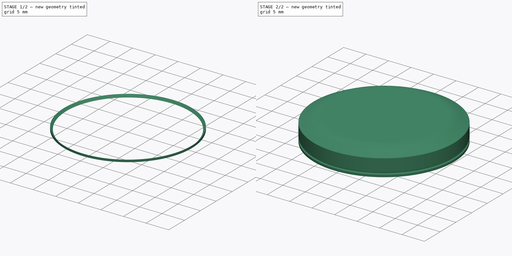
[diagram: build sequence overview — one tinted view per stage of 2, left to right]
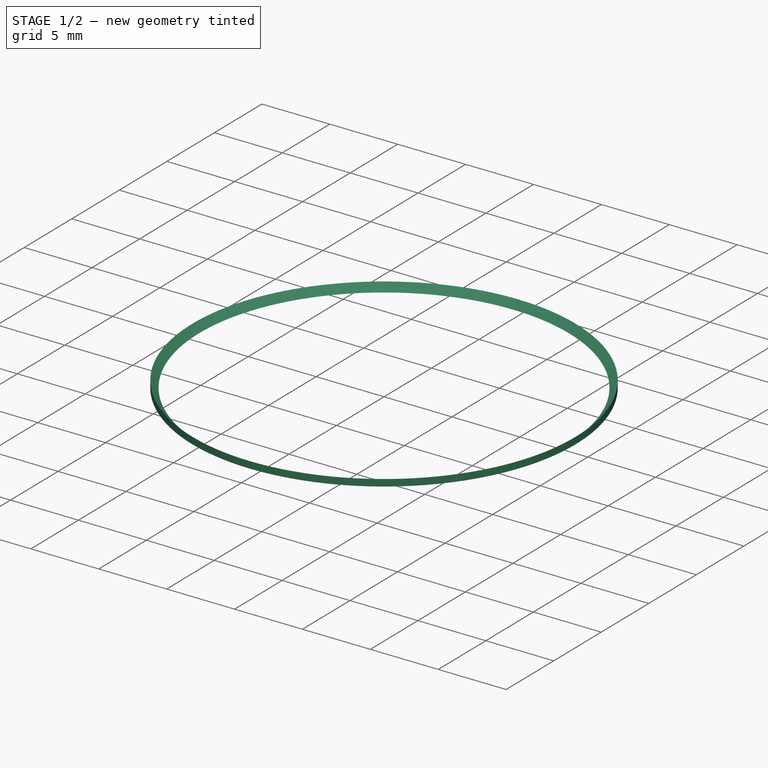
[diagram: stage 1 of 2 — iso view after this stage's code; geometry added in this stage tinted green]
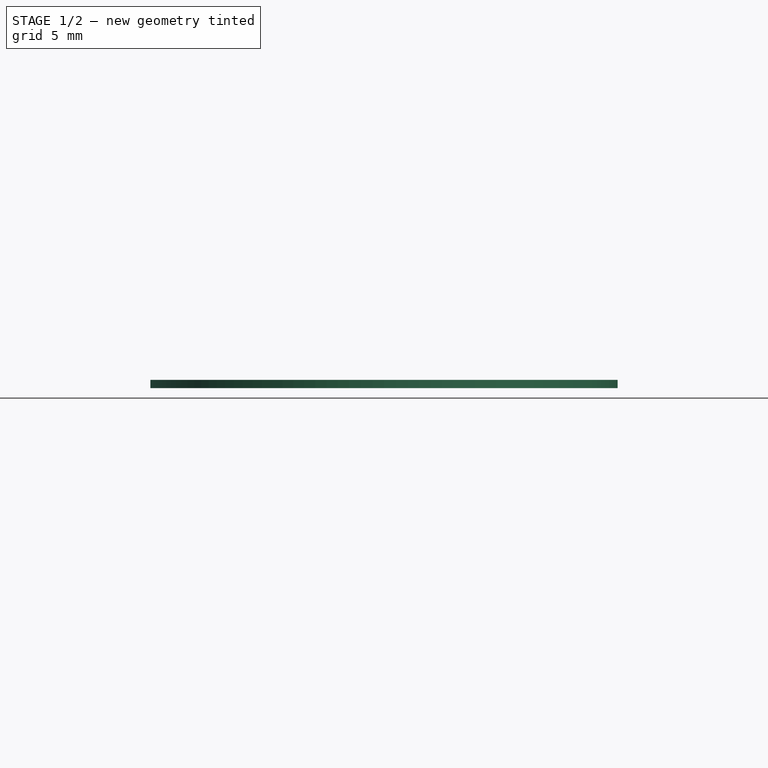
[diagram: stage 1 of 2 — front view after this stage's code; geometry added in this stage tinted green]
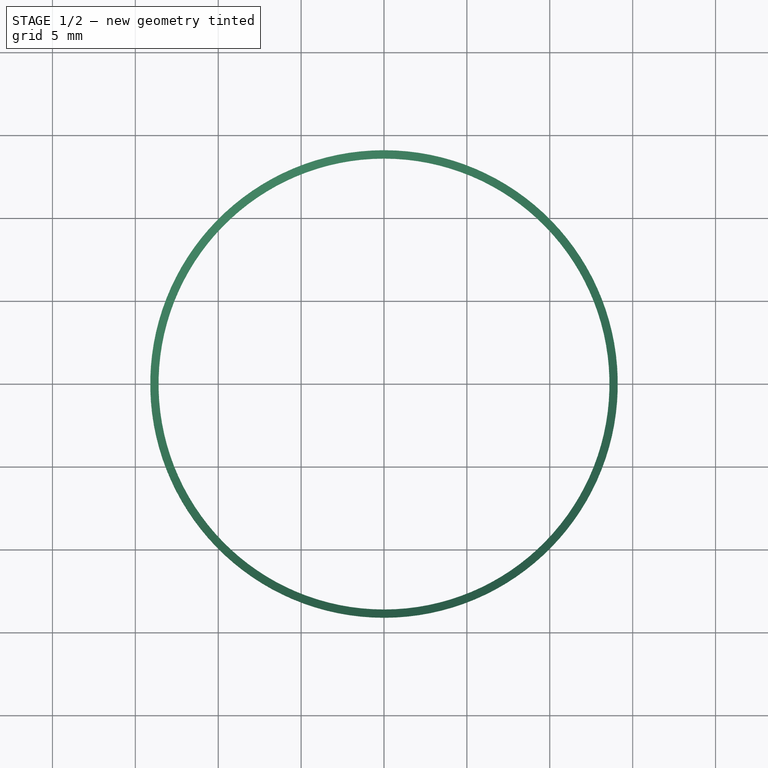
[diagram: stage 1 of 2 — top view after this stage's code; geometry added in this stage tinted green]
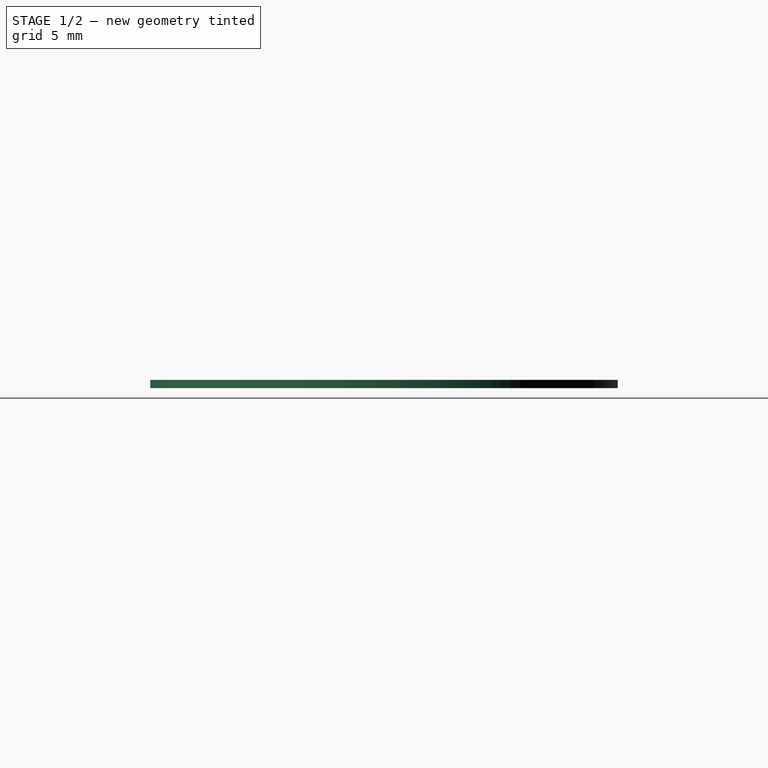
[diagram: stage 1 of 2 — right view after this stage's code; geometry added in this stage tinted green]
FCSTD DOCUMENT  (FreeCAD 0.19R20415 (Git))
Label: Vostok_Amphibia_Crystal
License: All rights reserved
LicenseURL: http://en.wikipedia.org/wiki/All_rights_reserved
objects: Sketcher::SketchObject×2, PartDesign::Revolution×2, PartDesign::Body×2
note: 8 computed .brp shape members not serialized (recipe doc carries the construction recipe); baked Part::Feature solids carry a one-line shape summary decoded from their .brp

FEATURE [PartDesign::Body] Body001  label="Crystal"
  Group = -> [Sketch002,Revolution001]
  Origin = -> Origin001
  Tip = -> Revolution001
FEATURE [Sketcher::SketchObject] Sketch
  MapMode = 5
  Placement = pos=(0,0,0) rot=(0.57735,0.57735,0.57735;2.0944rad)
  Support = -> [YZ_Plane]
  sketch-geometry (3):
    g0: LineSegment StartX=13.6 StartY=0 StartZ=0 EndX=14.1 EndY=0 EndZ=0
    g1: LineSegment StartX=14.1 StartY=0 StartZ=0 EndX=14.1 EndY=0.5 EndZ=0
    g2: LineSegment StartX=14.1 StartY=0.5 StartZ=0 EndX=13.6 EndY=0 EndZ=0
  constraints (9):
    c: PointOnObject(g0,g-1)
    c: PointOnObject(g0,g-1)
    c: Coincident(g0,g1)
    c: Coincident(g1,g2)
    c: Coincident(g2,g0)
    c: DistanceX(g0) = 14.1
    c: DistanceX(g0,g0) = 0.5
    c: Vertical(g1)
    c: Equal(g1,g0)
FEATURE [PartDesign::Revolution] Revolution
  Angle = 360
  Axis = (-3e-16,3e-16,1)
  Base = (0,0,0)
  Placement = pos=(0,0,0) rot=(0.57735,0.57735,0.57735;2.0944rad)
  Profile = -> Sketch
  ReferenceAxis = -> Z_Axis
  Reversed = true
FEATURE [PartDesign::Body] Body  label="TensionRing"
  Group = -> [Sketch,Revolution]
  Origin = -> Origin
  Tip = -> Revolution
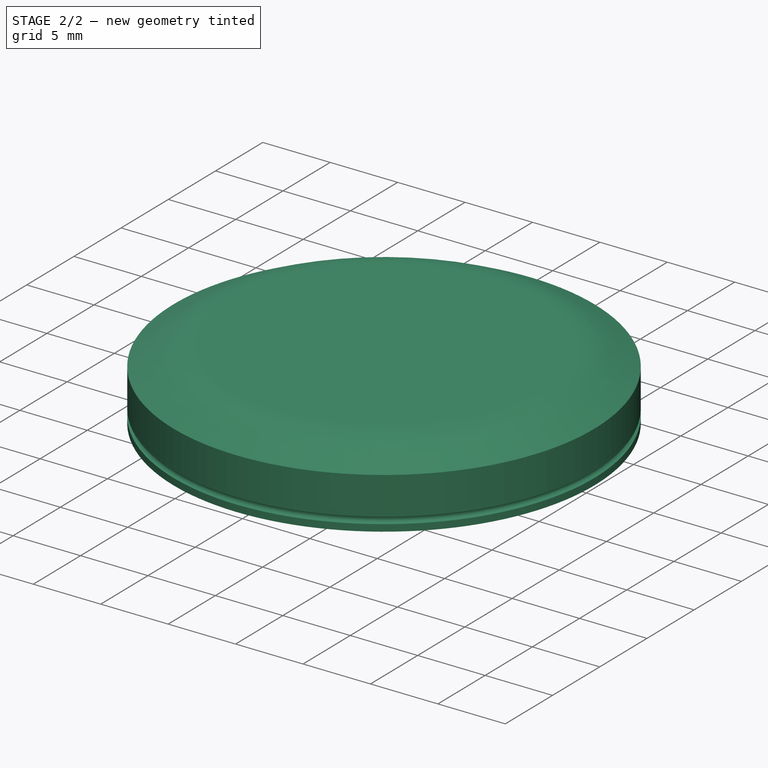
[diagram: stage 2 of 2 — iso view after this stage's code; geometry added in this stage tinted green]
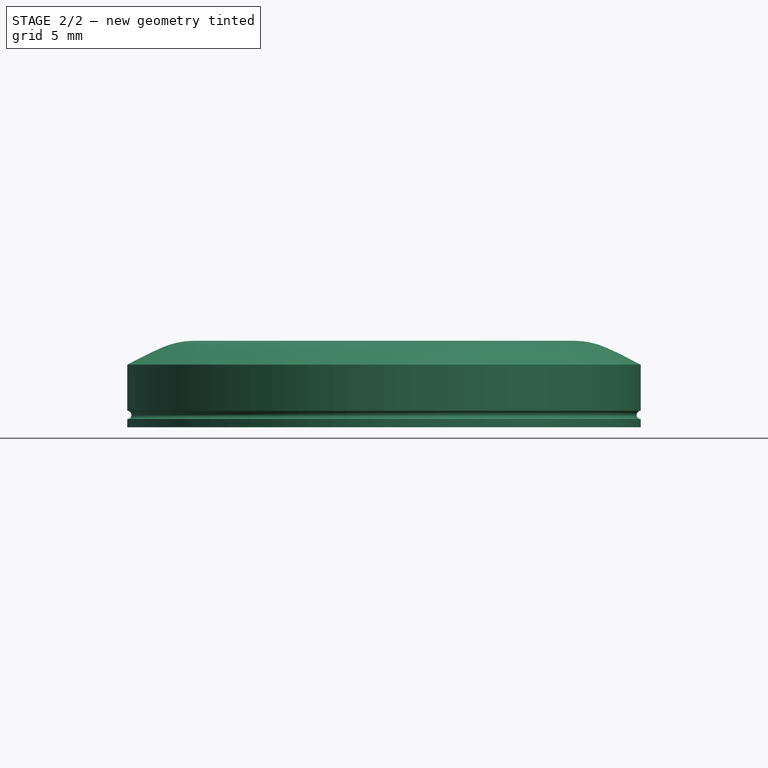
[diagram: stage 2 of 2 — front view after this stage's code; geometry added in this stage tinted green]
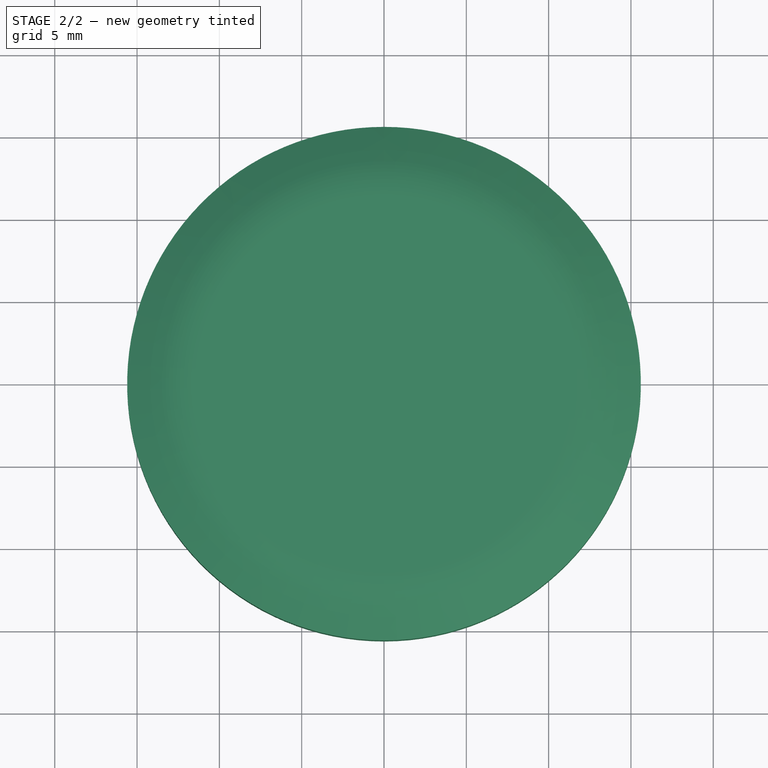
[diagram: stage 2 of 2 — top view after this stage's code; geometry added in this stage tinted green]
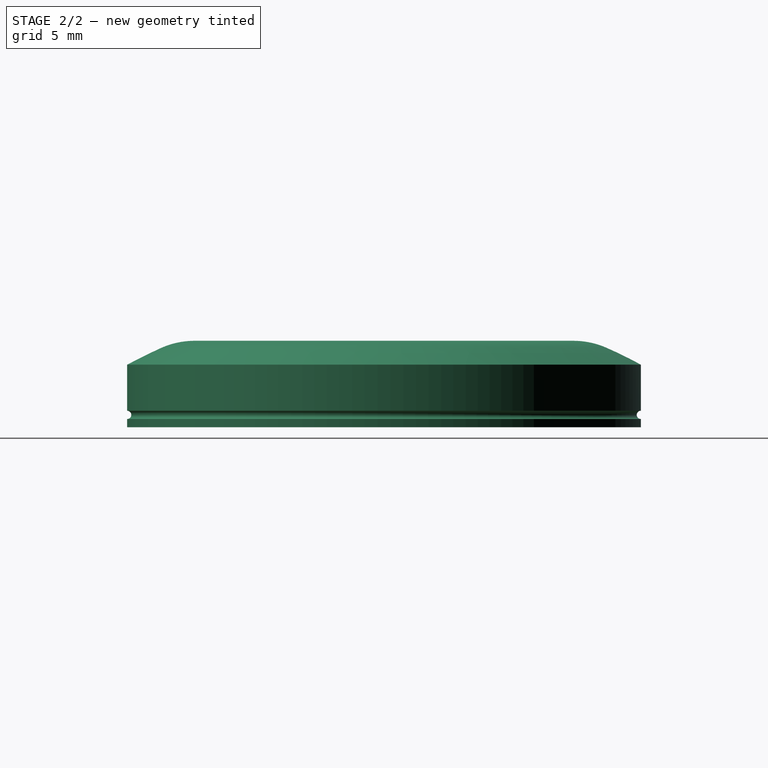
[diagram: stage 2 of 2 — right view after this stage's code; geometry added in this stage tinted green]
FEATURE [Sketcher::SketchObject] Sketch002
  MapMode = 5
  Placement = pos=(0,0,0) rot=(0.57735,0.57735,0.57735;2.0944rad)
  Support = -> [YZ_Plane001]
  sketch-geometry (11):
    g0: LineSegment StartX=14.1 StartY=2 StartZ=0 EndX=14.1 EndY=0 EndZ=0
    g1: LineSegment StartX=14.1 StartY=0 StartZ=0 EndX=15.6 EndY=0 EndZ=0
    g2: ArcOfCircle CenterX=3.53086 CenterY=-18.0937 CenterZ=0 NormalX=0 NormalY=0 NormalZ=1 AngleXU=0 Radius=25 StartAngle=1.06699 EndAngle=1.16096
    g3: LineSegment StartX=0 StartY=5.25 StartZ=0 EndX=11.5 EndY=5.25 EndZ=0
    g4: ArcOfCircle CenterX=11.5 CenterY=0.25 CenterZ=0 NormalX=0 NormalY=0 NormalZ=1 AngleXU=0 Radius=5 StartAngle=1.16096 EndAngle=1.5708
    g5: LineSegment StartX=0 StartY=2.25 StartZ=0 EndX=13.85 EndY=2.25 EndZ=0
    g6: ArcOfCircle CenterX=13.85 CenterY=2 CenterZ=0 NormalX=0 NormalY=0 NormalZ=1 AngleXU=0 Radius=0.25 StartAngle=0 EndAngle=1.5708
    g7: LineSegment StartX=0 StartY=5.25 StartZ=0 EndX=0 EndY=2.25 EndZ=0
    g8: LineSegment StartX=15.6 StartY=0 StartZ=0 EndX=15.6 EndY=0.5 EndZ=0
    g9: LineSegment StartX=15.6 StartY=1 StartZ=0 EndX=15.6 EndY=3.8 EndZ=0
    g10: ArcOfCircle CenterX=15.6 CenterY=0.75 CenterZ=0 NormalX=0 NormalY=0 NormalZ=1 AngleXU=0 Radius=0.25 StartAngle=1.5708 EndAngle=4.71239
  constraints (33):
    c: Coincident(g0,g1)
    c: Vertical(g0)
    c: Horizontal(g3)
    c: Tangent(g3,g4) = 1.5708
    c: Tangent(g2,g4) = -1.5708
    c: Tangent(g5,g6) = 1.5708
    c: Tangent(g0,g6) = 1.5708
    c: DistanceY(g3) = 5.25
    c: DistanceY(g5,g3) = 3
    c: Radius(g6) = 0.25
    c: DistanceX(g1,g1) = 1.5
    c: Vertical(g7)
    c: Coincident(g3,g7)
    c: Coincident(g5,g7)
    c: DistanceX(g1) = 15.6
    c: DistanceY(g2) = 3.8
    c: Radius(g2) = 25
    c: Radius(g4) = 5
    c: PointOnObject(g5,g-2)
    c: PointOnObject(g1,g-1)
    c: Horizontal(g1)
    c: Horizontal(g5)
    c: DistanceX(g3,g3) = 11.5
    c: Coincident(g1,g8)
    c: Vertical(g8)
    c: Coincident(g9,g2)
    c: Vertical(g9)
    c: Coincident(g10,g9)
    c: Coincident(g10,g8)
    c: Vertical(g8,g9)
    c: Vertical(g9,g10)
    c: Radius(g10) = 0.25
    c: DistanceY(g8,g8) = 0.5
FEATURE [PartDesign::Revolution] Revolution001
  AllowMultiFace = false
  Angle = 360
  Axis = (-2e-16,3e-16,1)
  Base = (0,0,0)
  Placement = pos=(0,0,0) rot=(0.57735,0.57735,0.57735;2.0944rad)
  Profile = -> Sketch002
  ReferenceAxis = -> Sketch002 [V_Axis]
  Reversed = true
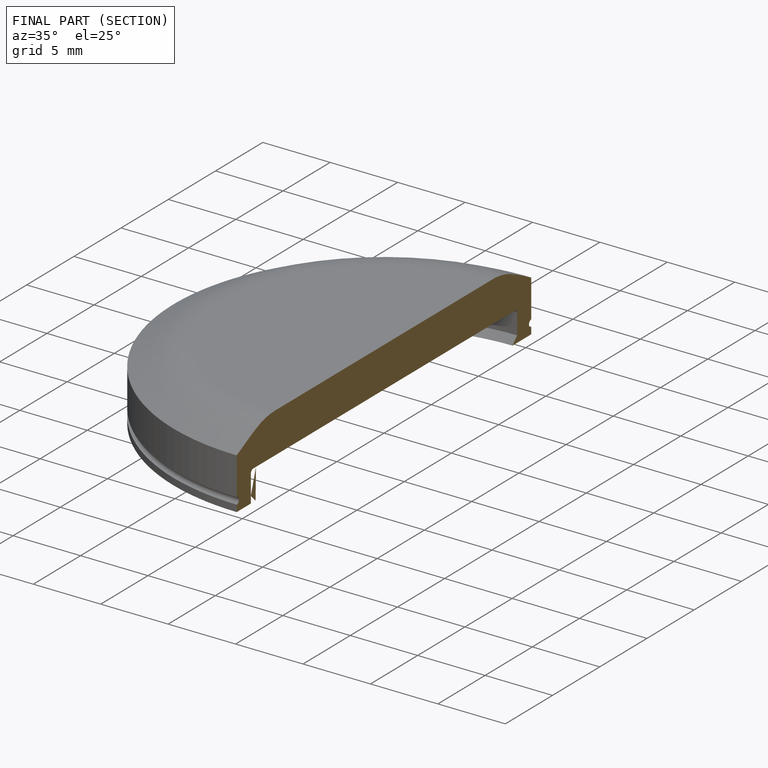
[diagram: finished part — half-section view (interior)]
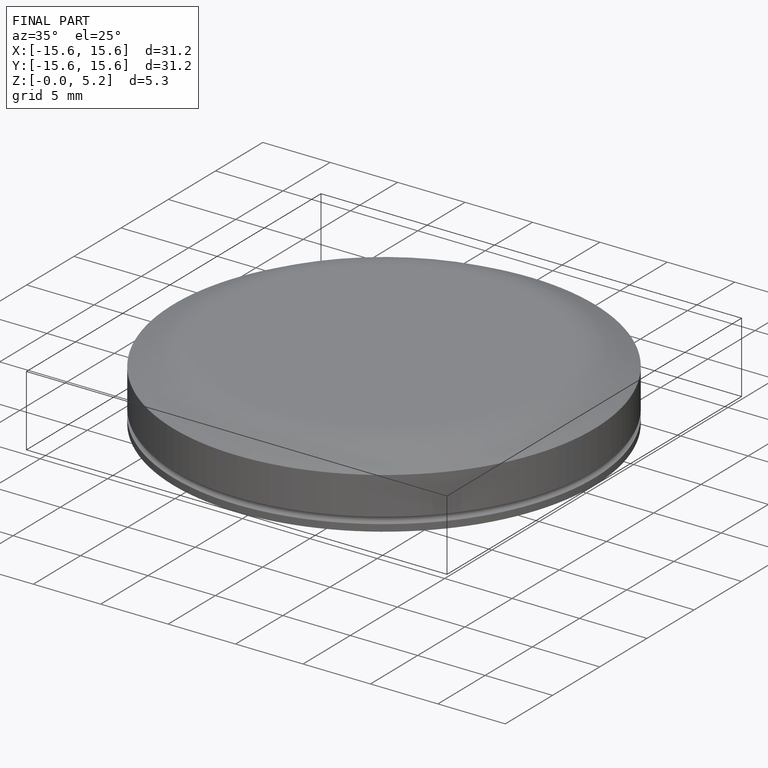
[diagram: finished part — iso view with bounding-box wireframe]
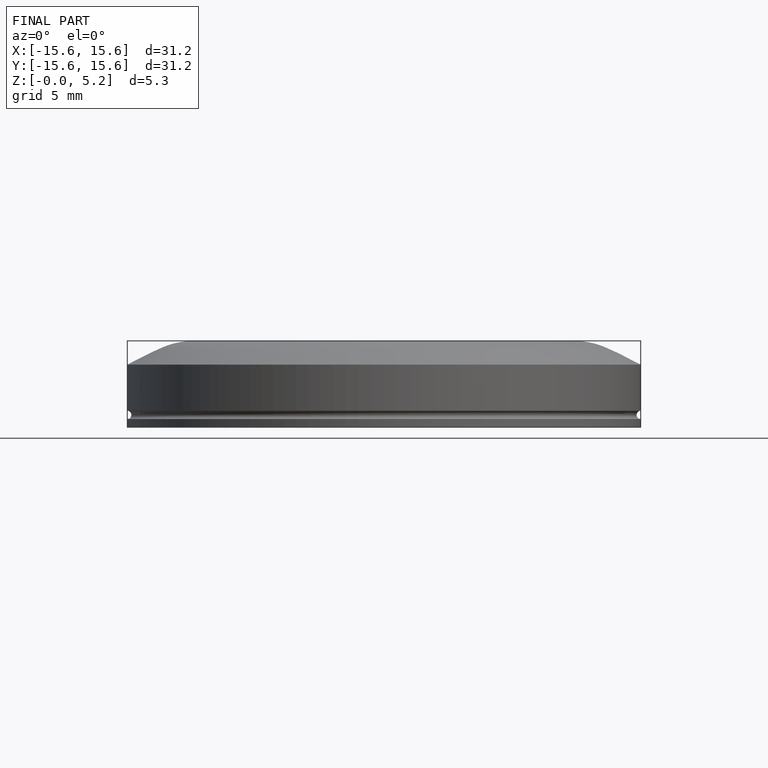
[diagram: finished part — front view with bounding-box wireframe]
